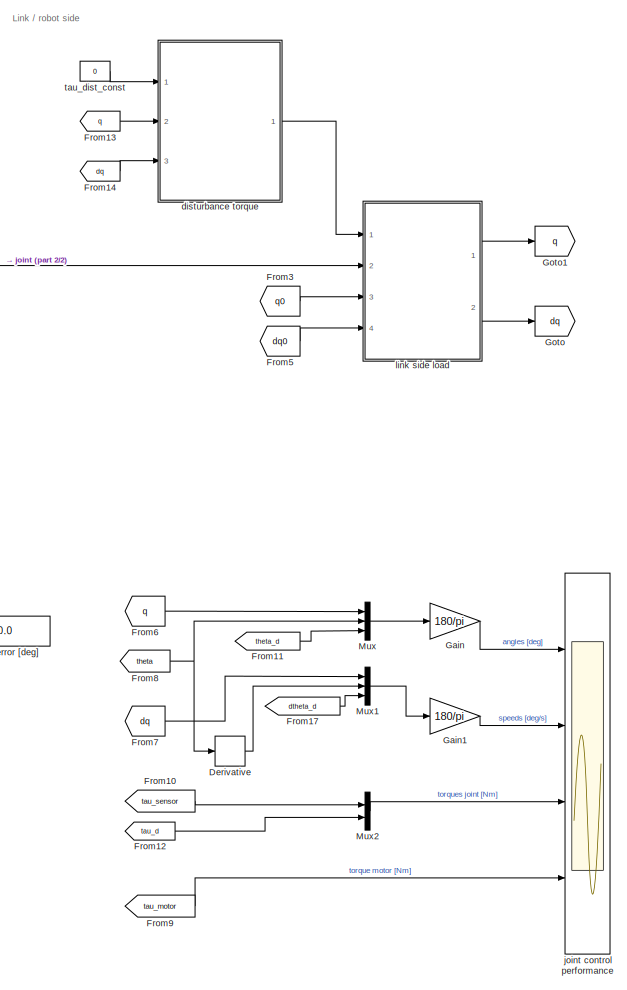
[diagram: root canvas - part 1/2, right side, full height]
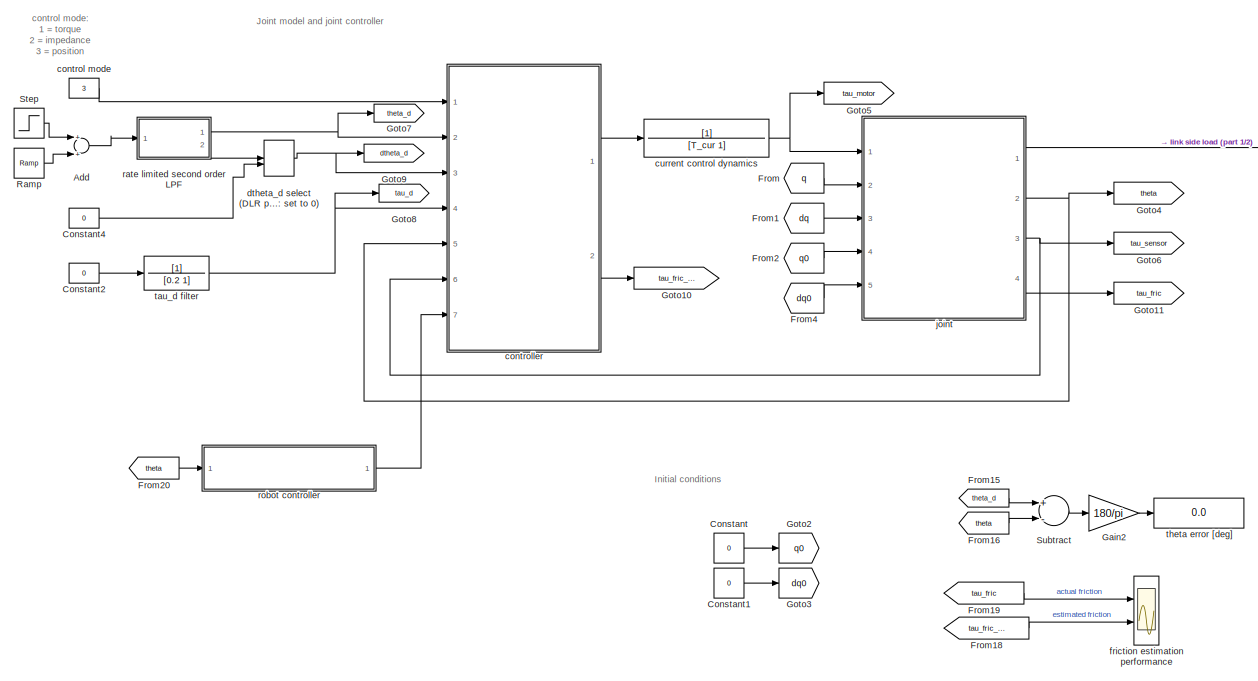
[diagram: root canvas - part 2/2, central region]
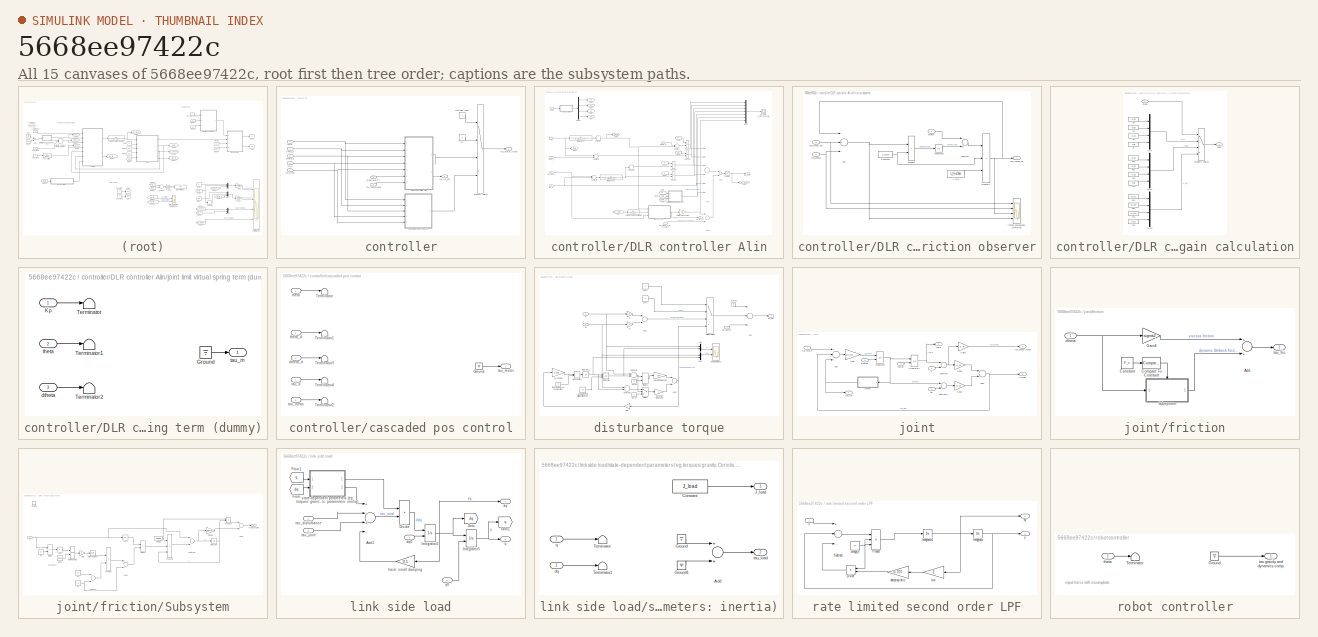
[diagram: thumbnail index - all 15 canvases of the model, root first then tree order]
MODEL slx_5668ee97422c
KIND model
CONFIG AbsTol = auto
CONFIG EnableMultiTasking = off
CONFIG FixedStep = auto
CONFIG MaxStep = 0.001
CONFIG MinStep = auto
CONFIG RelTol = 1e-3
CONFIG SampleTimeConstraint = Unconstrained
CONFIG Solver = VariableStepAuto
CONFIG SolverName = VariableStepAuto
CONFIG StartTime = 0.0
CONFIG StopTime = 2
BLOCK [Sum] Add
  InputSameDT = off
  OutDataTypeStr = Inherit: Inherit via internal rule
  Ports = [2, 1]
  SaturateOnIntegerOverflow = off
BLOCK [Constant] Constant
  Value = 0
BLOCK [Constant] Constant1
  Value = 0
BLOCK [Constant] Constant2
  Value = 0
BLOCK [Constant] Constant4
  Value = 0
BLOCK [Derivative] Derivative
BLOCK [From] From
  GotoTag = q
BLOCK [From] From1
  GotoTag = dq
BLOCK [From] From10
  GotoTag = tau_sensor
BLOCK [From] From11
  GotoTag = theta_d
BLOCK [From] From12
  GotoTag = tau_d
BLOCK [From] From13
  GotoTag = q
BLOCK [From] From14
  GotoTag = dq
BLOCK [From] From15
  GotoTag = theta_d
BLOCK [From] From16
  GotoTag = theta
BLOCK [From] From17
  GotoTag = dtheta_d
BLOCK [From] From18
  GotoTag = tau_fric_est
BLOCK [From] From19
  GotoTag = tau_fric
BLOCK [From] From2
  GotoTag = q0
BLOCK [From] From20
  GotoTag = theta
BLOCK [From] From3
  GotoTag = q0
BLOCK [From] From4
  GotoTag = dq0
BLOCK [From] From5
  GotoTag = dq0
BLOCK [From] From6
  GotoTag = q
BLOCK [From] From7
  GotoTag = dq
BLOCK [From] From8
  GotoTag = theta
BLOCK [From] From9
  GotoTag = tau_motor
BLOCK [Gain] Gain
  Gain = 180/pi
  OutDataTypeStr = Inherit: Inherit via internal rule
  ParamDataTypeStr = Inherit: Inherit via internal rule
  SaturateOnIntegerOverflow = off
BLOCK [Gain] Gain1
  Gain = 180/pi
  OutDataTypeStr = Inherit: Inherit via internal rule
  ParamDataTypeStr = Inherit: Inherit via internal rule
  SaturateOnIntegerOverflow = off
BLOCK [Gain] Gain2
  Gain = 180/pi
  OutDataTypeStr = Inherit: Inherit via internal rule
  ParamDataTypeStr = Inherit: Inherit via internal rule
  SaturateOnIntegerOverflow = off
BLOCK [Goto] Goto
  GotoTag = dq
BLOCK [Goto] Goto1
  GotoTag = q
BLOCK [Goto] Goto10
  GotoTag = tau_fric_est
BLOCK [Goto] Goto11
  GotoTag = tau_fric
BLOCK [Goto] Goto2
  GotoTag = q0
BLOCK [Goto] Goto3
  GotoTag = dq0
BLOCK [Goto] Goto4
  GotoTag = theta
BLOCK [Goto] Goto5
  GotoTag = tau_motor
BLOCK [Goto] Goto6
  GotoTag = tau_sensor
BLOCK [Goto] Goto7
  GotoTag = theta_d
BLOCK [Goto] Goto8
  GotoTag = tau_d
BLOCK [Goto] Goto9
  GotoTag = dtheta_d
BLOCK [Mux] Mux
  DisplayOption = bar
  Inputs = 3
  Ports = [3, 1]
BLOCK [Mux] Mux1
  DisplayOption = bar
  Inputs = 3
  Ports = [3, 1]
BLOCK [Mux] Mux2
  DisplayOption = bar
  Inputs = 2
  Ports = [2, 1]
BLOCK [Reference] Ramp  REF=simulink/Sources/Ramp
  Ports = [0, 1]
  SourceBlock = simulink/Sources/Ramp
  SourceProductBaseCode = SL
  SourceProductName = Simulink
  SourceType = Ramp
BLOCK [Step] Step
  After = 0.1
  SampleTime = 0
  Time = 0.1
BLOCK [Sum] Subtract
  InputSameDT = off
  Inputs = +-
  OutDataTypeStr = Inherit: Inherit via internal rule
  Ports = [2, 1]
  SaturateOnIntegerOverflow = off
BLOCK [Constant] control mode
  Value = 3
BLOCK [SubSystem] controller
  Ports = [7, 2]
  RequestExecContextInheritance = off
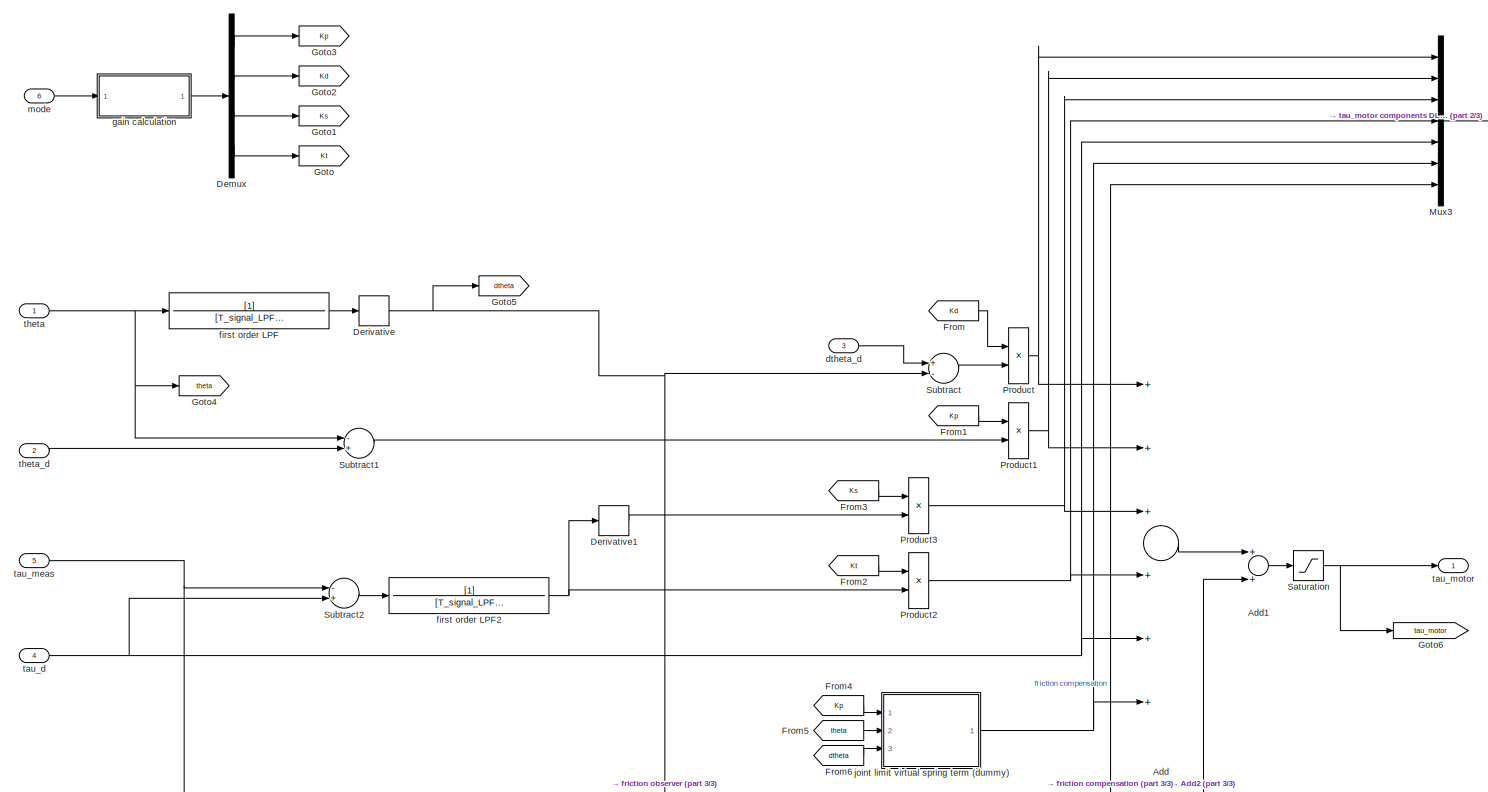
[diagram: controller/DLR controller Alin - part 1/3, most of the canvas]
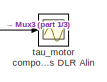
[diagram: controller/DLR controller Alin - part 2/3, top right region]
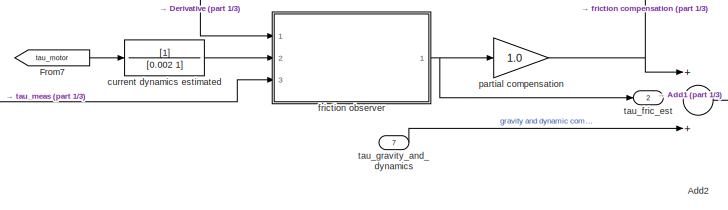
[diagram: controller/DLR controller Alin - part 3/3, bottom center region]
BLOCK [SubSystem] controller/DLR controller Alin
  Ports = [7, 2]
  RequestExecContextInheritance = off
BLOCK [Sum] controller/DLR controller Alin/Add
  InputSameDT = off
  Inputs = ++++++
  OutDataTypeStr = Inherit: Inherit via internal rule
  Ports = [6, 1]
  SaturateOnIntegerOverflow = off
BLOCK [Sum] controller/DLR controller Alin/Add1
  InputSameDT = off
  OutDataTypeStr = Inherit: Inherit via internal rule
  Ports = [2, 1]
  SaturateOnIntegerOverflow = off
BLOCK [Sum] controller/DLR controller Alin/Add2
  InputSameDT = off
  OutDataTypeStr = Inherit: Inherit via internal rule
  Ports = [2, 1]
  SaturateOnIntegerOverflow = off
BLOCK [Demux] controller/DLR controller Alin/Demux
  DisplayOption = bar
  Ports = [1, 4]
BLOCK [Derivative] controller/DLR controller Alin/Derivative
BLOCK [Derivative] controller/DLR controller Alin/Derivative1
BLOCK [From] controller/DLR controller Alin/From
  GotoTag = Kd
BLOCK [From] controller/DLR controller Alin/From1
  GotoTag = Kp
BLOCK [From] controller/DLR controller Alin/From2
  GotoTag = Kt
BLOCK [From] controller/DLR controller Alin/From3
  GotoTag = Ks
BLOCK [From] controller/DLR controller Alin/From4
  GotoTag = Kp
BLOCK [From] controller/DLR controller Alin/From5
  GotoTag = theta
BLOCK [From] controller/DLR controller Alin/From6
  GotoTag = dtheta
BLOCK [From] controller/DLR controller Alin/From7
  GotoTag = tau_motor
BLOCK [Goto] controller/DLR controller Alin/Goto
  GotoTag = Kt
BLOCK [Goto] controller/DLR controller Alin/Goto1
  GotoTag = Ks
BLOCK [Goto] controller/DLR controller Alin/Goto2
  GotoTag = Kd
BLOCK [Goto] controller/DLR controller Alin/Goto3
  GotoTag = Kp
BLOCK [Goto] controller/DLR controller Alin/Goto4
  GotoTag = theta
BLOCK [Goto] controller/DLR controller Alin/Goto5
  GotoTag = dtheta
BLOCK [Goto] controller/DLR controller Alin/Goto6
  GotoTag = tau_motor
BLOCK [Mux] controller/DLR controller Alin/Mux3
  DisplayOption = bar
  Inputs = 7
  Ports = [7, 1]
BLOCK [Product] controller/DLR controller Alin/Product
  InputSameDT = off
  OutDataTypeStr = Inherit: Inherit via internal rule
  Ports = [2, 1]
  RndMeth = Floor
  SaturateOnIntegerOverflow = off
BLOCK [Product] controller/DLR controller Alin/Product1
  InputSameDT = off
  OutDataTypeStr = Inherit: Inherit via internal rule
  Ports = [2, 1]
  RndMeth = Floor
  SaturateOnIntegerOverflow = off
BLOCK [Product] controller/DLR controller Alin/Product2
  InputSameDT = off
  OutDataTypeStr = Inherit: Inherit via internal rule
  Ports = [2, 1]
  RndMeth = Floor
  SaturateOnIntegerOverflow = off
BLOCK [Product] controller/DLR controller Alin/Product3
  InputSameDT = off
  OutDataTypeStr = Inherit: Inherit via internal rule
  Ports = [2, 1]
  RndMeth = Floor
  SaturateOnIntegerOverflow = off
BLOCK [Saturate] controller/DLR controller Alin/Saturation
  InputPortMap = u0
  LinearizeAsGain = off
  LowerLimit = -tau_max_ctrl
  Ports = [1, 1]
  UpperLimit = tau_max_ctrl
  ZeroCross = off
BLOCK [Sum] controller/DLR controller Alin/Subtract
  InputSameDT = off
  Inputs = +-
  OutDataTypeStr = Inherit: Inherit via internal rule
  Ports = [2, 1]
  SaturateOnIntegerOverflow = off
BLOCK [Sum] controller/DLR controller Alin/Subtract1
  InputSameDT = off
  Inputs = -+
  OutDataTypeStr = Inherit: Inherit via internal rule
  Ports = [2, 1]
  SaturateOnIntegerOverflow = off
BLOCK [Sum] controller/DLR controller Alin/Subtract2
  InputSameDT = off
  Inputs = -+
  OutDataTypeStr = Inherit: Inherit via internal rule
  Ports = [2, 1]
  SaturateOnIntegerOverflow = off
BLOCK [TransferFcn] controller/DLR controller Alin/current dynamics estimated
  Denominator = [0.002 1]
BLOCK [Inport] controller/DLR controller Alin/dtheta_d
  IconDisplay = Port number
  Port = 3
BLOCK [TransferFcn] controller/DLR controller Alin/first order LPF
  Denominator = [T_signal_LPF 1]
BLOCK [TransferFcn] controller/DLR controller Alin/first order LPF2
  Denominator = [T_signal_LPF 1]
BLOCK [SubSystem] controller/DLR controller Alin/friction observer
  Ports = [3, 1]
  RequestExecContextInheritance = off
BLOCK [Sum] controller/DLR controller Alin/friction observer/Add
  InputSameDT = off
  Inputs = -+-
  OutDataTypeStr = Inherit: Inherit via internal rule
  Ports = [3, 1]
  SaturateOnIntegerOverflow = off
BLOCK [Constant] controller/DLR controller Alin/friction observer/Constant
  Value = J_joint
BLOCK [Integrator] controller/DLR controller Alin/friction observer/Integrator
  Ports = [1, 1]
BLOCK [Constant] controller/DLR controller Alin/friction observer/L (1//s)
  Value = L_fricObs
BLOCK [Product] controller/DLR controller Alin/friction observer/Product
  InputSameDT = off
  Inputs = */
  OutDataTypeStr = Inherit: Inherit via internal rule
  Ports = [2, 1]
  RndMeth = Floor
  SaturateOnIntegerOverflow = off
BLOCK [Product] controller/DLR controller Alin/friction observer/Product1
  InputSameDT = off
  Inputs = 3
  OutDataTypeStr = Inherit: Inherit via internal rule
  Ports = [3, 1]
  RndMeth = Floor
  SaturateOnIntegerOverflow = off
BLOCK [Sum] controller/DLR controller Alin/friction observer/Subtract
  InputSameDT = off
  Inputs = -+
  OutDataTypeStr = Inherit: Inherit via internal rule
  Ports = [2, 1]
  SaturateOnIntegerOverflow = off
BLOCK [Inport] controller/DLR controller Alin/friction observer/dtheta
  IconDisplay = Port number
BLOCK [Scope] controller/DLR controller Alin/friction observer/friction compensation internal
  Floating = off
  NumInputPorts = 4
  Ports = [4]
  ScopeSpecificationString = Simulink.scopes.TimeScopeBlockCfg('CurrentConfiguration', extmgr.ConfigurationSet(extmgr.Configuration('Core','General UI',true),extmgr.Configuration('Core','Source UI',true),extmgr.Configuration('Sources','WiredSimulink',true,'DataLoggingVariableName','ScopeData3'),extmgr.Configuration('Visuals','Time Domain',true,'SerializedDisplays',{struct('MinYLimReal','-74.35229','MaxYLimReal','141.46204','Y...<+1460ch>
BLOCK [Outport] controller/DLR controller Alin/friction observer/tau_friction_est
  IconDisplay = Port number
BLOCK [Inport] controller/DLR controller Alin/friction observer/tau_motor_act
  IconDisplay = Port number
  Port = 2
BLOCK [Inport] controller/DLR controller Alin/friction observer/tau_sensor
  IconDisplay = Port number
  Port = 3
BLOCK [SubSystem] controller/DLR controller Alin/gain calculation
  Ports = [1, 1]
  RequestExecContextInheritance = off
BLOCK [Constant] controller/DLR controller Alin/gain calculation/Kd
  Value = Kd_trq
BLOCK [Constant] controller/DLR controller Alin/gain calculation/Kd1
  Value = Kd_trq
BLOCK [Constant] controller/DLR controller Alin/gain calculation/Kd2
  Value = Kd_pos
BLOCK [Constant] controller/DLR controller Alin/gain calculation/Kp
  Value = Kp_trq
BLOCK [Constant] controller/DLR controller Alin/gain calculation/Kp1
  Value = Kp_trq
BLOCK [Constant] controller/DLR controller Alin/gain calculation/Kp2
  Value = Kp_pos
BLOCK [Constant] controller/DLR controller Alin/gain calculation/Ks
  Value = Ks_trq
BLOCK [Constant] controller/DLR controller Alin/gain calculation/Ks1
  Value = Ks_trq
BLOCK [Constant] controller/DLR controller Alin/gain calculation/Ks2
  Value = Ks_pos
BLOCK [Constant] controller/DLR controller Alin/gain calculation/Kt
  Value = Kt_trq
BLOCK [Constant] controller/DLR controller Alin/gain calculation/Kt1
  Value = Kt_trq
BLOCK [Constant] controller/DLR controller Alin/gain calculation/Kt2
  Value = Kt_pos
BLOCK [MultiPortSwitch] controller/DLR controller Alin/gain calculation/Multiport Switch1
  InputSameDT = off
  Ports = [4, 1]
  SaturateOnIntegerOverflow = off
BLOCK [Mux] controller/DLR controller Alin/gain calculation/Mux
  DisplayOption = bar
  Ports = [4, 1]
BLOCK [Mux] controller/DLR controller Alin/gain calculation/Mux1
  DisplayOption = bar
  Ports = [4, 1]
BLOCK [Mux] controller/DLR controller Alin/gain calculation/Mux2
  DisplayOption = bar
  Ports = [4, 1]
BLOCK [Outport] controller/DLR controller Alin/gain calculation/gains
  IconDisplay = Port number
BLOCK [Inport] controller/DLR controller Alin/gain calculation/mode
  IconDisplay = Port number
BLOCK [SubSystem] controller/DLR controller Alin/joint limit virtual spring term (dummy)
  Ports = [3, 1]
  RequestExecContextInheritance = off
BLOCK [Ground] controller/DLR controller Alin/joint limit virtual spring term (dummy)/Ground
BLOCK [Inport] controller/DLR controller Alin/joint limit virtual spring term (dummy)/Kp
  IconDisplay = Port number
BLOCK [Terminator] controller/DLR controller Alin/joint limit virtual spring term (dummy)/Terminator
BLOCK [Terminator] controller/DLR controller Alin/joint limit virtual spring term (dummy)/Terminator1
BLOCK [Terminator] controller/DLR controller Alin/joint limit virtual spring term (dummy)/Terminator2
BLOCK [Inport] controller/DLR controller Alin/joint limit virtual spring term (dummy)/dtheta
  IconDisplay = Port number
  Port = 3
BLOCK [Outport] controller/DLR controller Alin/joint limit virtual spring term (dummy)/tau_m
  IconDisplay = Port number
BLOCK [Inport] controller/DLR controller Alin/joint limit virtual spring term (dummy)/theta
  IconDisplay = Port number
  Port = 2
BLOCK [Inport] controller/DLR controller Alin/mode
  IconDisplay = Port number
  Port = 6
BLOCK [Gain] controller/DLR controller Alin/partial compensation
  Gain = 1.0
  OutDataTypeStr = Inherit: Inherit via internal rule
  ParamDataTypeStr = Inherit: Inherit via internal rule
  SaturateOnIntegerOverflow = off
BLOCK [Inport] controller/DLR controller Alin/tau_d
  IconDisplay = Port number
  Port = 4
BLOCK [Outport] controller/DLR controller Alin/tau_fric_est
  IconDisplay = Port number
  Port = 2
BLOCK [Inport] controller/DLR controller Alin/tau_gravity_and_dynamics
  IconDisplay = Port number
  Port = 7
BLOCK [Inport] controller/DLR controller Alin/tau_meas
  IconDisplay = Port number
  Port = 5
BLOCK [Outport] controller/DLR controller Alin/tau_motor
  IconDisplay = Port number
BLOCK [Scope] controller/DLR controller Alin/tau_motor components DLR Alin
  Floating = off
  NumInputPorts = 1
  Ports = [1]
  ScopeSpecificationString = Simulink.scopes.TimeScopeBlockCfg('CurrentConfiguration', extmgr.ConfigurationSet(extmgr.Configuration('Core','General UI',true),extmgr.Configuration('Core','Source UI',true),extmgr.Configuration('Sources','WiredSimulink',true,'DataLoggingVariableName','ScopeData1'),extmgr.Configuration('Visuals','Time Domain',true,'SerializedDisplays',{struct('MinYLimReal','-417.65258','MaxYLimReal','370.60839','...<+1656ch>
BLOCK [Inport] controller/DLR controller Alin/theta
  IconDisplay = Port number
BLOCK [Inport] controller/DLR controller Alin/theta_d
  IconDisplay = Port number
  Port = 2
BLOCK [MultiPortSwitch] controller/Multiport Switch
  DataPortOrder = Zero-based contiguous
  InputSameDT = off
  Ports = [4, 1]
  SaturateOnIntegerOverflow = off
  zeroidx = on
BLOCK [SubSystem] controller/cascaded pos control
  Ports = [5, 1]
  RequestExecContextInheritance = off
BLOCK [Ground] controller/cascaded pos control/Ground
BLOCK [Terminator] controller/cascaded pos control/Terminator
BLOCK [Terminator] controller/cascaded pos control/Terminator1
BLOCK [Terminator] controller/cascaded pos control/Terminator2
BLOCK [Terminator] controller/cascaded pos control/Terminator3
BLOCK [Terminator] controller/cascaded pos control/Terminator4
BLOCK [Inport] controller/cascaded pos control/dtheta_d
  IconDisplay = Port number
  Port = 3
BLOCK [Inport] controller/cascaded pos control/tau_d
  IconDisplay = Port number
  Port = 4
BLOCK [Inport] controller/cascaded pos control/tau_meas
  IconDisplay = Port number
  Port = 5
BLOCK [Outport] controller/cascaded pos control/tau_motor
  IconDisplay = Port number
BLOCK [Inport] controller/cascaded pos control/theta
  IconDisplay = Port number
BLOCK [Inport] controller/cascaded pos control/theta_d
  IconDisplay = Port number
  Port = 2
BLOCK [Constant] controller/controller select
BLOCK [Inport] controller/dtheta_d
  IconDisplay = Port number
  Port = 3
BLOCK [Inport] controller/mode DLR ctrl
  IconDisplay = Port number
BLOCK [Constant] controller/off
  Value = 0
BLOCK [Inport] controller/tau_d
  IconDisplay = Port number
  Port = 4
BLOCK [Inport] controller/tau_feedforward
  IconDisplay = Port number
  Port = 7
BLOCK [Outport] controller/tau_fric_est
  IconDisplay = Port number
  Port = 2
BLOCK [Inport] controller/tau_meas
  IconDisplay = Port number
  Port = 6
BLOCK [Outport] controller/tau_motor_target
  IconDisplay = Port number
BLOCK [Inport] controller/theta
  IconDisplay = Port number
  Port = 5
BLOCK [Inport] controller/theta_d
  IconDisplay = Port number
  Port = 2
BLOCK [TransferFcn] current control dynamics
  Denominator = [T_cur 1]
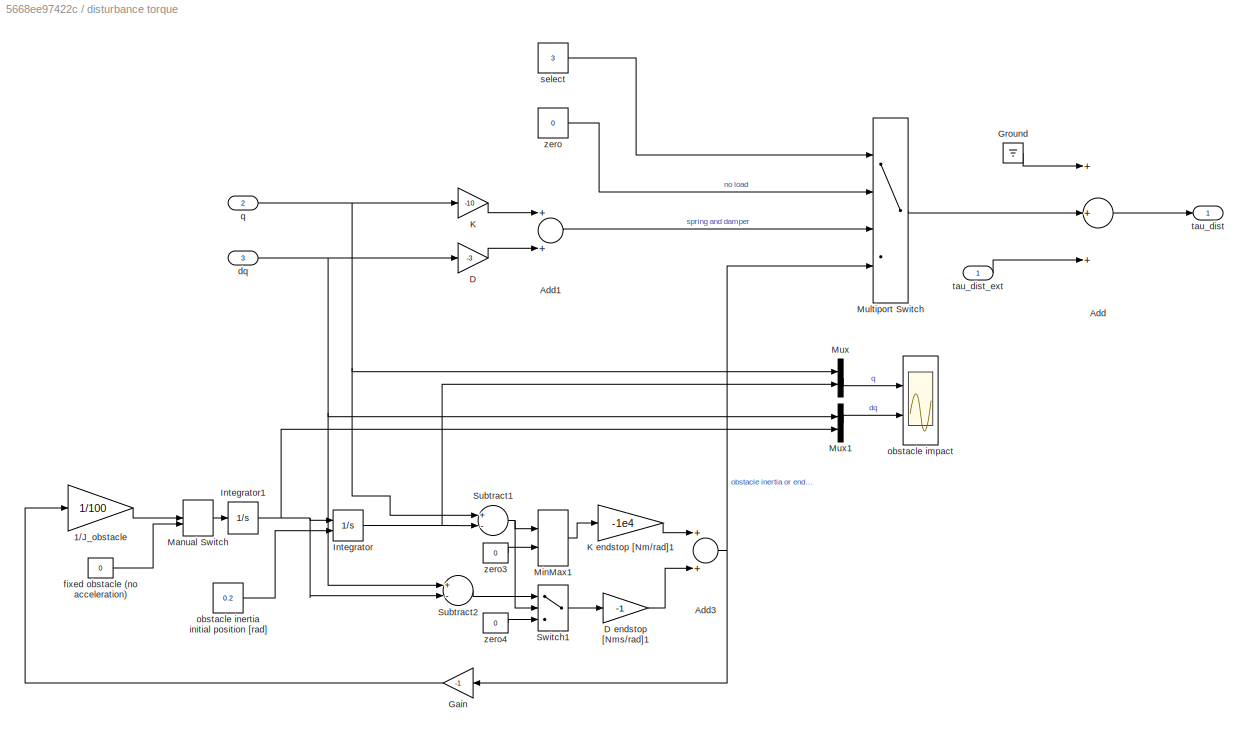
BLOCK [SubSystem] disturbance torque
  Ports = [3, 1]
  RequestExecContextInheritance = off
BLOCK [Gain] disturbance torque/1//J_obstacle
  Gain = 1/100
  OutDataTypeStr = Inherit: Inherit via internal rule
  ParamDataTypeStr = Inherit: Inherit via internal rule
  SaturateOnIntegerOverflow = off
BLOCK [Sum] disturbance torque/Add
  InputSameDT = off
  Inputs = +++
  OutDataTypeStr = Inherit: Inherit via internal rule
  Ports = [3, 1]
  SaturateOnIntegerOverflow = off
BLOCK [Sum] disturbance torque/Add1
  InputSameDT = off
  OutDataTypeStr = Inherit: Inherit via internal rule
  Ports = [2, 1]
  SaturateOnIntegerOverflow = off
BLOCK [Sum] disturbance torque/Add3
  InputSameDT = off
  OutDataTypeStr = Inherit: Inherit via internal rule
  Ports = [2, 1]
  SaturateOnIntegerOverflow = off
BLOCK [Gain] disturbance torque/D
  Gain = -3
  OutDataTypeStr = Inherit: Inherit via internal rule
  ParamDataTypeStr = Inherit: Inherit via internal rule
  SaturateOnIntegerOverflow = off
BLOCK [Gain] disturbance torque/D endstop [Nms//rad]1
  Gain = -1
  OutDataTypeStr = Inherit: Inherit via internal rule
  ParamDataTypeStr = Inherit: Inherit via internal rule
  SaturateOnIntegerOverflow = off
BLOCK [Gain] disturbance torque/Gain
  Gain = -1
  OutDataTypeStr = Inherit: Inherit via internal rule
  ParamDataTypeStr = Inherit: Inherit via internal rule
  SaturateOnIntegerOverflow = off
BLOCK [Ground] disturbance torque/Ground
BLOCK [Integrator] disturbance torque/Integrator
  InitialConditionSource = external
  Ports = [2, 1]
BLOCK [Integrator] disturbance torque/Integrator1
  Ports = [1, 1]
BLOCK [Gain] disturbance torque/K
  Gain = -10
  OutDataTypeStr = Inherit: Inherit via internal rule
  ParamDataTypeStr = Inherit: Inherit via internal rule
  SaturateOnIntegerOverflow = off
BLOCK [Gain] disturbance torque/K endstop [Nm//rad]1
  Gain = -1e4
  OutDataTypeStr = Inherit: Inherit via internal rule
  ParamDataTypeStr = Inherit: Inherit via internal rule
  SaturateOnIntegerOverflow = off
BLOCK [ManualSwitch] disturbance torque/Manual Switch
BLOCK [MinMax] disturbance torque/MinMax1
  Function = max
  InputSameDT = off
  Inputs = 2
  Ports = [2, 1]
  SaturateOnIntegerOverflow = off
BLOCK [MultiPortSwitch] disturbance torque/Multiport Switch
  InputSameDT = off
  Ports = [4, 1]
  SaturateOnIntegerOverflow = off
BLOCK [Mux] disturbance torque/Mux
  DisplayOption = bar
  Inputs = 2
  Ports = [2, 1]
BLOCK [Mux] disturbance torque/Mux1
  DisplayOption = bar
  Inputs = 2
  Ports = [2, 1]
BLOCK [Sum] disturbance torque/Subtract1
  InputSameDT = off
  Inputs = +-
  OutDataTypeStr = Inherit: Inherit via internal rule
  Ports = [2, 1]
  SaturateOnIntegerOverflow = off
BLOCK [Sum] disturbance torque/Subtract2
  InputSameDT = off
  Inputs = +-
  OutDataTypeStr = Inherit: Inherit via internal rule
  Ports = [2, 1]
  SaturateOnIntegerOverflow = off
BLOCK [Switch] disturbance torque/Switch1
  Criteria = u2 > Threshold
  InputSameDT = off
  SaturateOnIntegerOverflow = off
BLOCK [Inport] disturbance torque/dq
  IconDisplay = Port number
  Port = 3
BLOCK [Constant] disturbance torque/fixed obstacle (no acceleration)
  Value = 0
BLOCK [Scope] disturbance torque/obstacle impact
  Floating = off
  NumInputPorts = 2
  Ports = [2]
  ScopeSpecificationString = Simulink.scopes.TimeScopeBlockCfg('CurrentConfiguration', extmgr.ConfigurationSet(extmgr.Configuration('Core','General UI',true),extmgr.Configuration('Core','Source UI',true),extmgr.Configuration('Sources','WiredSimulink',true,'DataLoggingVariableName','ScopeData4'),extmgr.Configuration('Visuals','Time Domain',true,'SerializedDisplays',{struct('MinYLimReal','-0.05113','MaxYLimReal','0.46017','YLab...<+2007ch>
BLOCK [Constant] disturbance torque/obstacle inertia initial position [rad]
  Value = 0.2
BLOCK [Inport] disturbance torque/q
  IconDisplay = Port number
  Port = 2
BLOCK [Constant] disturbance torque/select
  Value = 3
BLOCK [Outport] disturbance torque/tau_dist
  IconDisplay = Port number
BLOCK [Inport] disturbance torque/tau_dist_ext
  IconDisplay = Port number
BLOCK [Constant] disturbance torque/zero
  Value = 0
BLOCK [Constant] disturbance torque/zero3
  Value = 0
BLOCK [Constant] disturbance torque/zero4
  Value = 0
BLOCK [ManualSwitch] dtheta_d select (DLR papers and sim: set to 0)
BLOCK [Scope] friction estimation performance
  Floating = off
  NumInputPorts = 2
  Ports = [2]
  ScopeSpecificationString = Simulink.scopes.TimeScopeBlockCfg('CurrentConfiguration', extmgr.ConfigurationSet(extmgr.Configuration('Core','General UI',true),extmgr.Configuration('Core','Source UI',true),extmgr.Configuration('Sources','WiredSimulink',true,'DataLoggingVariableName','ScopeData2'),extmgr.Configuration('Visuals','Time Domain',true,'SerializedDisplays',{struct('MinYLimReal','-12.85663','MaxYLimReal','115.70966','Y...<+1432ch>
BLOCK [SubSystem] joint
  Ports = [5, 4]
  RequestExecContextInheritance = off
BLOCK [Scope] joint control performance
  Floating = off
  NumInputPorts = 4
  Ports = [4]
  ScopeSpecificationString = Simulink.scopes.TimeScopeBlockCfg('CurrentConfiguration', extmgr.ConfigurationSet(extmgr.Configuration('Core','General UI',true),extmgr.Configuration('Core','Source UI',true),extmgr.Configuration('Sources','WiredSimulink',true),extmgr.Configuration('Visuals','Time Domain',true,'SerializedDisplays',{struct('MinYLimReal','-2.76352','MaxYLimReal','24.87167','YLabelReal','','MinYLimMag','0.00000','Max...<+3587ch>
BLOCK [Sum] joint/Add
  InputSameDT = off
  Inputs = +--
  OutDataTypeStr = Inherit: Inherit via internal rule
  Ports = [3, 1]
  SaturateOnIntegerOverflow = off
BLOCK [Sum] joint/Add2
  InputSameDT = off
  OutDataTypeStr = Inherit: Inherit via internal rule
  Ports = [2, 1]
  SaturateOnIntegerOverflow = off
BLOCK [Gain] joint/Gain
  Gain = 1/J_joint
  OutDataTypeStr = Inherit: Inherit via internal rule
  ParamDataTypeStr = Inherit: Inherit via internal rule
  SaturateOnIntegerOverflow = off
BLOCK [Gain] joint/Gain2
  Gain = K_el
  OutDataTypeStr = Inherit: Inherit via internal rule
  ParamDataTypeStr = Inherit: Inherit via internal rule
  SaturateOnIntegerOverflow = off
BLOCK [Gain] joint/Gain3
  Gain = D_el
  OutDataTypeStr = Inherit: Inherit via internal rule
  ParamDataTypeStr = Inherit: Inherit via internal rule
  SaturateOnIntegerOverflow = off
BLOCK [Gain] joint/Gain4
  Gain = K_el
  OutDataTypeStr = Inherit: Inherit via internal rule
  ParamDataTypeStr = Inherit: Inherit via internal rule
  SaturateOnIntegerOverflow = off
BLOCK [Integrator] joint/Integrator
  InitialConditionSource = external
  Ports = [2, 1]
BLOCK [Integrator] joint/Integrator1
  InitialConditionSource = external
  Ports = [2, 1]
BLOCK [Sum] joint/Subtract
  InputSameDT = off
  Inputs = +-
  OutDataTypeStr = Inherit: Inherit via internal rule
  Ports = [2, 1]
  SaturateOnIntegerOverflow = off
BLOCK [Sum] joint/Subtract1
  InputSameDT = off
  Inputs = +-
  OutDataTypeStr = Inherit: Inherit via internal rule
  Ports = [2, 1]
  SaturateOnIntegerOverflow = off
BLOCK [Inport] joint/dq
  IconDisplay = Port number
  Port = 3
BLOCK [Inport] joint/dtheta0
  IconDisplay = Port number
  Port = 5
BLOCK [SubSystem] joint/friction
  Ports = [1, 1]
  RequestExecContextInheritance = off
BLOCK [Sum] joint/friction/Add
  InputSameDT = off
  OutDataTypeStr = Inherit: Inherit via internal rule
  Ports = [2, 1]
  SaturateOnIntegerOverflow = off
BLOCK [Reference] joint/friction/Compare To Constant  REF=simulink/Logic and Bit
Operations/Compare
To Constant
  Ports = [1, 1]
  SourceBlock = simulink/Logic and Bit\nOperations/Compare\nTo Constant
  SourceProductBaseCode = SL
  SourceProductName = Simulink
  SourceType = Compare To Constant
BLOCK [Constant] joint/friction/Constant
  Value = F_c
BLOCK [Gain] joint/friction/Gain4
  Gain = sigma2
  OutDataTypeStr = Inherit: Inherit via internal rule
  ParamDataTypeStr = Inherit: Inherit via internal rule
  SaturateOnIntegerOverflow = off
BLOCK [SubSystem] joint/friction/Subsystem
  Ports = [1, 1, 1]
  RequestExecContextInheritance = off
BLOCK [Abs] joint/friction/Subsystem/Abs
  SaturateOnIntegerOverflow = off
BLOCK [Abs] joint/friction/Subsystem/Abs1
  SaturateOnIntegerOverflow = off
BLOCK [Sum] joint/friction/Subsystem/Add1
  InputSameDT = off
  OutDataTypeStr = Inherit: Inherit via internal rule
  Ports = [2, 1]
  SaturateOnIntegerOverflow = off
BLOCK [Sum] joint/friction/Subsystem/Add2
  InputSameDT = off
  OutDataTypeStr = Inherit: Inherit via internal rule
  Ports = [2, 1]
  SaturateOnIntegerOverflow = off
BLOCK [Product] joint/friction/Subsystem/Divide
  InputSameDT = off
  Inputs = */
  OutDataTypeStr = Inherit: Inherit via internal rule
  Ports = [2, 1]
  RndMeth = Floor
  SaturateOnIntegerOverflow = off
BLOCK [Product] joint/friction/Subsystem/Divide1
  InputSameDT = off
  Inputs = */
  OutDataTypeStr = Inherit: Inherit via internal rule
  Ports = [2, 1]
  RndMeth = Floor
  SaturateOnIntegerOverflow = off
BLOCK [EnablePort] joint/friction/Subsystem/Enable
  Ports = []
  StatesWhenEnabling = reset
BLOCK [Outport] joint/friction/Subsystem/F_fric dynamic
  IconDisplay = Port number
  InitialOutput = 0
  OutputWhenDisabled = reset
BLOCK [Constant] joint/friction/Subsystem/Fc
  Value = F_c
BLOCK [Constant] joint/friction/Subsystem/Fs
  Value = F_s
BLOCK [Gain] joint/friction/Subsystem/Gain
  Gain = -1
  OutDataTypeStr = Inherit: Inherit via internal rule
  ParamDataTypeStr = Inherit: Inherit via internal rule
  SaturateOnIntegerOverflow = off
BLOCK [Integrator] joint/friction/Subsystem/Integrator
  Ports = [1, 1]
BLOCK [Math] joint/friction/Subsystem/Math Function
  Operator = pow
  Ports = [2, 1]
BLOCK [Math] joint/friction/Subsystem/Math Function1
  Ports = [1, 1]
BLOCK [Product] joint/friction/Subsystem/Product
  InputSameDT = off
  OutDataTypeStr = Inherit: Inherit via internal rule
  Ports = [2, 1]
  RndMeth = Floor
  SaturateOnIntegerOverflow = off
BLOCK [Product] joint/friction/Subsystem/Product1
  InputSameDT = off
  Inputs = 3
  OutDataTypeStr = Inherit: Inherit via internal rule
  Ports = [3, 1]
  RndMeth = Floor
  SaturateOnIntegerOverflow = off
BLOCK [Product] joint/friction/Subsystem/Product2
  InputSameDT = off
  OutDataTypeStr = Inherit: Inherit via internal rule
  Ports = [2, 1]
  RndMeth = Floor
  SaturateOnIntegerOverflow = off
BLOCK [Sum] joint/friction/Subsystem/Subtract
  InputSameDT = off
  Inputs = +-
  OutDataTypeStr = Inherit: Inherit via internal rule
  Ports = [2, 1]
  SaturateOnIntegerOverflow = off
BLOCK [Sum] joint/friction/Subsystem/Subtract1
  InputSameDT = off
  Inputs = +-
  OutDataTypeStr = Inherit: Inherit via internal rule
  Ports = [2, 1]
  SaturateOnIntegerOverflow = off
BLOCK [Constant] joint/friction/Subsystem/alpha
  Value = alpha
BLOCK [Constant] joint/friction/Subsystem/sigma0
  Value = sigma0
BLOCK [Gain] joint/friction/Subsystem/sigma1
  Gain = sigma1
  OutDataTypeStr = Inherit: Inherit via internal rule
  ParamDataTypeStr = Inherit: Inherit via internal rule
  SaturateOnIntegerOverflow = off
BLOCK [Inport] joint/friction/Subsystem/v
  IconDisplay = Port number
BLOCK [Constant] joint/friction/Subsystem/vs
  Value = vs
BLOCK [Inport] joint/friction/dtheta
  IconDisplay = Port number
BLOCK [Outport] joint/friction/tau_fric
  IconDisplay = Port number
BLOCK [Inport] joint/q
  IconDisplay = Port number
  Port = 2
BLOCK [Inport] joint/tau motor
  IconDisplay = Port number
BLOCK [Outport] joint/tau_fric
  IconDisplay = Port number
  Port = 4
BLOCK [Outport] joint/tau_joint
  IconDisplay = Port number
BLOCK [Outport] joint/tau_sensor_meas
  IconDisplay = Port number
  Port = 3
BLOCK [Outport] joint/theta
  IconDisplay = Port number
  Port = 2
BLOCK [Inport] joint/theta0
  IconDisplay = Port number
  Port = 4
BLOCK [SubSystem] link side load
  Ports = [4, 2]
  RequestExecContextInheritance = off
BLOCK [Sum] link side load/Add1
  InputSameDT = off
  Inputs = +++-
  OutDataTypeStr = Inherit: Inherit via internal rule
  Ports = [4, 1]
  SaturateOnIntegerOverflow = off
BLOCK [Product] link side load/Divide
  InputSameDT = off
  Inputs = /*
  OutDataTypeStr = Inherit: Inherit via internal rule
  Ports = [2, 1]
  RndMeth = Floor
  SaturateOnIntegerOverflow = off
BLOCK [From] link side load/From
  GotoTag = dq
BLOCK [From] link side load/From1
  GotoTag = q
BLOCK [Goto] link side load/Goto
  GotoTag = dq
BLOCK [Goto] link side load/Goto1
  GotoTag = q
BLOCK [Integrator] link side load/Integrator2
  InitialConditionSource = external
  Ports = [2, 1]
BLOCK [Integrator] link side load/Integrator3
  InitialConditionSource = external
  Ports = [2, 1]
BLOCK [Outport] link side load/dq
  IconDisplay = Port number
  Port = 2
BLOCK [Inport] link side load/dq0
  IconDisplay = Port number
  Port = 4
BLOCK [Gain] link side load/hack: small damping
  Gain = 0.1
  OutDataTypeStr = Inherit: Inherit via internal rule
  ParamDataTypeStr = Inherit: Inherit via internal rule
  SaturateOnIntegerOverflow = off
BLOCK [Outport] link side load/q
  IconDisplay = Port number
BLOCK [Inport] link side load/q0
  IconDisplay = Port number
  Port = 3
BLOCK [SubSystem] link side load/state-dependent parameters (eg torques: gravity, Coriolis, etc. parameters: inertia)
  Ports = [2, 2]
  RequestExecContextInheritance = off
BLOCK [Sum] link side load/state-dependent parameters (eg torques: gravity, Coriolis, etc. parameters: inertia)/Add
  InputSameDT = off
  OutDataTypeStr = Inherit: Inherit via internal rule
  Ports = [2, 1]
  SaturateOnIntegerOverflow = off
BLOCK [Constant] link side load/state-dependent parameters (eg torques: gravity, Coriolis, etc. parameters: inertia)/Constant
  Value = J_load
BLOCK [Ground] link side load/state-dependent parameters (eg torques: gravity, Coriolis, etc. parameters: inertia)/Ground
BLOCK [Ground] link side load/state-dependent parameters (eg torques: gravity, Coriolis, etc. parameters: inertia)/Ground1
BLOCK [Outport] link side load/state-dependent parameters (eg torques: gravity, Coriolis, etc. parameters: inertia)/J_load
  IconDisplay = Port number
BLOCK [Terminator] link side load/state-dependent parameters (eg torques: gravity, Coriolis, etc. parameters: inertia)/Terminator
BLOCK [Terminator] link side load/state-dependent parameters (eg torques: gravity, Coriolis, etc. parameters: inertia)/Terminator1
BLOCK [Inport] link side load/state-dependent parameters (eg torques: gravity, Coriolis, etc. parameters: inertia)/dq
  IconDisplay = Port number
  Port = 2
BLOCK [Inport] link side load/state-dependent parameters (eg torques: gravity, Coriolis, etc. parameters: inertia)/q
  IconDisplay = Port number
BLOCK [Outport] link side load/state-dependent parameters (eg torques: gravity, Coriolis, etc. parameters: inertia)/tau_load
  IconDisplay = Port number
  Port = 2
BLOCK [Inport] link side load/tau_disturbance
  IconDisplay = Port number
BLOCK [Inport] link side load/tau_joint
  IconDisplay = Port number
  Port = 2
BLOCK [SubSystem] rate limited second order LPF
  Ports = [1, 2]
  RequestExecContextInheritance = off
BLOCK [Product] rate limited second order LPF/Divide
  InputSameDT = off
  Inputs = /*
  OutDataTypeStr = Inherit: Inherit via internal rule
  Ports = [2, 1]
  RndMeth = Floor
  SaturateOnIntegerOverflow = off
BLOCK [Integrator] rate limited second order LPF/Integrator
  Ports = [1, 1]
BLOCK [Integrator] rate limited second order LPF/Integrator1
  LimitOutput = on
  LowerSaturationLimit = -1
  Ports = [1, 1]
  UpperSaturationLimit = 1
BLOCK [Product] rate limited second order LPF/Product
  InputSameDT = off
  Inputs = 3
  OutDataTypeStr = Inherit: Inherit via internal rule
  Ports = [3, 1]
  RndMeth = Floor
  SaturateOnIntegerOverflow = off
BLOCK [Sum] rate limited second order LPF/Subtract
  InputSameDT = off
  Inputs = +--
  OutDataTypeStr = Inherit: Inherit via internal rule
  Ports = [3, 1]
  SaturateOnIntegerOverflow = off
BLOCK [Gain] rate limited second order LPF/damping ratio
  Gain = 0.707
  OutDataTypeStr = Inherit: Inherit via internal rule
  ParamDataTypeStr = Inherit: Inherit via internal rule
  SaturateOnIntegerOverflow = off
BLOCK [Outport] rate limited second order LPF/dy
  IconDisplay = Port number
  Port = 2
BLOCK [Constant] rate limited second order LPF/omega_n
  Value = 20
BLOCK [Gain] rate limited second order LPF/two
  Gain = 2
  OutDataTypeStr = Inherit: Inherit via internal rule
  ParamDataTypeStr = Inherit: Inherit via internal rule
  SaturateOnIntegerOverflow = off
BLOCK [Inport] rate limited second order LPF/u
  IconDisplay = Port number
BLOCK [Outport] rate limited second order LPF/y
  IconDisplay = Port number
BLOCK [SubSystem] robot controller
  Ports = [1, 1]
  RequestExecContextInheritance = off
BLOCK [Ground] robot controller/Ground
BLOCK [Terminator] robot controller/Terminator
BLOCK [Outport] robot controller/tau gravity and dynamics comp.
  IconDisplay = Port number
BLOCK [Inport] robot controller/theta
  IconDisplay = Port number
BLOCK [TransferFcn] tau_d filter
  Denominator = [0.2 1]
BLOCK [Constant] tau_dist_const
  Value = 0
BLOCK [Display] theta error [deg]
  Decimation = 1
  Ports = [1]
ANNOTATION (root): Initial conditions
ANNOTATION (root): Joint model and joint controller
ANNOTATION (root): Link / robot side
ANNOTATION (root): control mode: 1 = torque 2 = impedance 3 = position
ANNOTATION joint/friction/Subsystem: alpha in [0.5, 2]
ANNOTATION robot controller: input list is still incomplete
LINE Add:1 -> rate limited second order LPF:1
LINE Constant1:1 -> Goto3:1
LINE Constant2:1 -> tau_d filter:1
LINE Constant4:1 -> dtheta_d select (DLR papers and sim: set to 0):2
LINE Constant:1 -> Goto2:1
LINE Derivative:1 -> Mux1:2
LINE From10:1 -> Mux2:1
LINE From11:1 -> Mux:3
LINE From12:1 -> Mux2:2
LINE From13:1 -> disturbance torque:2
LINE From14:1 -> disturbance torque:3
LINE From15:1 -> Subtract:1
LINE From16:1 -> Subtract:2
LINE From17:1 -> Mux1:3
LINE From18:1 -> friction estimation performance:2
LINE From19:1 -> friction estimation performance:1
LINE From1:1 -> joint:3
LINE From20:1 -> robot controller:1
LINE From2:1 -> joint:4
LINE From3:1 -> link side load:3
LINE From4:1 -> joint:5
LINE From5:1 -> link side load:4
LINE From6:1 -> Mux:1
LINE From7:1 -> Mux1:1
NET From8:1 -> Derivative:1, Mux:2
LINE From9:1 -> joint control performance:4
LINE From:1 -> joint:2
LINE Gain1:1 -> joint control performance:2
LINE Gain2:1 -> theta error [deg]:1
LINE Gain:1 -> joint control performance:1
LINE Mux1:1 -> Gain1:1
LINE Mux2:1 -> joint control performance:3
LINE Mux:1 -> Gain:1
LINE Ramp:1 -> Add:2
LINE Step:1 -> Add:1
LINE Subtract:1 -> Gain2:1
LINE control mode:1 -> controller:1
LINE controller/DLR controller Alin/Add1:1 -> controller/DLR controller Alin/Saturation:1
LINE controller/DLR controller Alin/Add2:1 -> controller/DLR controller Alin/Add1:2
LINE controller/DLR controller Alin/Add:1 -> controller/DLR controller Alin/Add1:1
LINE controller/DLR controller Alin/Demux:1 -> controller/DLR controller Alin/Goto3:1
LINE controller/DLR controller Alin/Demux:2 -> controller/DLR controller Alin/Goto2:1
LINE controller/DLR controller Alin/Demux:3 -> controller/DLR controller Alin/Goto1:1
LINE controller/DLR controller Alin/Demux:4 -> controller/DLR controller Alin/Goto:1
LINE controller/DLR controller Alin/Derivative1:1 -> controller/DLR controller Alin/Product3:2
NET controller/DLR controller Alin/Derivative:1 -> controller/DLR controller Alin/Goto5:1, controller/DLR controller Alin/Subtract:2, controller/DLR controller Alin/friction observer:1
LINE controller/DLR controller Alin/From1:1 -> controller/DLR controller Alin/Product1:1
LINE controller/DLR controller Alin/From2:1 -> controller/DLR controller Alin/Product2:1
LINE controller/DLR controller Alin/From3:1 -> controller/DLR controller Alin/Product3:1
LINE controller/DLR controller Alin/From4:1 -> controller/DLR controller Alin/joint limit virtual spring term (dummy):1
LINE controller/DLR controller Alin/From5:1 -> controller/DLR controller Alin/joint limit virtual spring term (dummy):2
LINE controller/DLR controller Alin/From6:1 -> controller/DLR controller Alin/joint limit virtual spring term (dummy):3
LINE controller/DLR controller Alin/From7:1 -> controller/DLR controller Alin/current dynamics estimated:1
LINE controller/DLR controller Alin/From:1 -> controller/DLR controller Alin/Product:1
LINE controller/DLR controller Alin/Mux3:1 -> controller/DLR controller Alin/tau_motor components DLR Alin:1
NET controller/DLR controller Alin/Product1:1 -> controller/DLR controller Alin/Add:2, controller/DLR controller Alin/Mux3:2
NET controller/DLR controller Alin/Product2:1 -> controller/DLR controller Alin/Add:4, controller/DLR controller Alin/Mux3:4
NET controller/DLR controller Alin/Product3:1 -> controller/DLR controller Alin/Add:3, controller/DLR controller Alin/Mux3:3
NET controller/DLR controller Alin/Product:1 -> controller/DLR controller Alin/Add:1, controller/DLR controller Alin/Mux3:1
NET controller/DLR controller Alin/Saturation:1 -> controller/DLR controller Alin/Goto6:1, controller/DLR controller Alin/tau_motor:1
LINE controller/DLR controller Alin/Subtract1:1 -> controller/DLR controller Alin/Product1:2
LINE controller/DLR controller Alin/Subtract2:1 -> controller/DLR controller Alin/first order LPF2:1
LINE controller/DLR controller Alin/Subtract:1 -> controller/DLR controller Alin/Product:2
LINE controller/DLR controller Alin/current dynamics estimated:1 -> controller/DLR controller Alin/friction observer:2
LINE controller/DLR controller Alin/dtheta_d:1 -> controller/DLR controller Alin/Subtract:1
NET controller/DLR controller Alin/first order LPF2:1 -> controller/DLR controller Alin/Derivative1:1, controller/DLR controller Alin/Product2:2
LINE controller/DLR controller Alin/first order LPF:1 -> controller/DLR controller Alin/Derivative:1
NET controller/DLR controller Alin/friction observer/Add:1 -> controller/DLR controller Alin/friction observer/Product:1, controller/DLR controller Alin/friction observer/friction compensation internal:4
NET controller/DLR controller Alin/friction observer/Constant:1 -> controller/DLR controller Alin/friction observer/Product1:2, controller/DLR controller Alin/friction observer/Product:2
LINE controller/DLR controller Alin/friction observer/Integrator:1 -> controller/DLR controller Alin/friction observer/Subtract:2
LINE controller/DLR controller Alin/friction observer/L (1//s):1 -> controller/DLR controller Alin/friction observer/Product1:3
NET controller/DLR controller Alin/friction observer/Product1:1 -> controller/DLR controller Alin/friction observer/Add:1, controller/DLR controller Alin/friction observer/friction compensation internal:3, controller/DLR controller Alin/friction observer/tau_friction_est:1
LINE controller/DLR controller Alin/friction observer/Product:1 -> controller/DLR controller Alin/friction observer/Integrator:1
LINE controller/DLR controller Alin/friction observer/Subtract:1 -> controller/DLR controller Alin/friction observer/Product1:1
LINE controller/DLR controller Alin/friction observer/dtheta:1 -> controller/DLR controller Alin/friction observer/Subtract:1
NET controller/DLR controller Alin/friction observer/tau_motor_act:1 -> controller/DLR controller Alin/friction observer/Add:2, controller/DLR controller Alin/friction observer/friction compensation internal:1
NET controller/DLR controller Alin/friction observer/tau_sensor:1 -> controller/DLR controller Alin/friction observer/Add:3, controller/DLR controller Alin/friction observer/friction compensation internal:2
NET controller/DLR controller Alin/friction observer:1 -> controller/DLR controller Alin/partial compensation:1, controller/DLR controller Alin/tau_fric_est:1
LINE controller/DLR controller Alin/gain calculation/Kd1:1 -> controller/DLR controller Alin/gain calculation/Mux1:2
LINE controller/DLR controller Alin/gain calculation/Kd2:1 -> controller/DLR controller Alin/gain calculation/Mux2:2
LINE controller/DLR controller Alin/gain calculation/Kd:1 -> controller/DLR controller Alin/gain calculation/Mux:2
LINE controller/DLR controller Alin/gain calculation/Kp1:1 -> controller/DLR controller Alin/gain calculation/Mux1:1
LINE controller/DLR controller Alin/gain calculation/Kp2:1 -> controller/DLR controller Alin/gain calculation/Mux2:1
LINE controller/DLR controller Alin/gain calculation/Kp:1 -> controller/DLR controller Alin/gain calculation/Mux:1
LINE controller/DLR controller Alin/gain calculation/Ks1:1 -> controller/DLR controller Alin/gain calculation/Mux1:3
LINE controller/DLR controller Alin/gain calculation/Ks2:1 -> controller/DLR controller Alin/gain calculation/Mux2:3
LINE controller/DLR controller Alin/gain calculation/Ks:1 -> controller/DLR controller Alin/gain calculation/Mux:3
LINE controller/DLR controller Alin/gain calculation/Kt1:1 -> controller/DLR controller Alin/gain calculation/Mux1:4
LINE controller/DLR controller Alin/gain calculation/Kt2:1 -> controller/DLR controller Alin/gain calculation/Mux2:4
LINE controller/DLR controller Alin/gain calculation/Kt:1 -> controller/DLR controller Alin/gain calculation/Mux:4
LINE controller/DLR controller Alin/gain calculation/Multiport Switch1:1 -> controller/DLR controller Alin/gain calculation/gains:1
LINE controller/DLR controller Alin/gain calculation/Mux1:1 -> controller/DLR controller Alin/gain calculation/Multiport Switch1:3
LINE controller/DLR controller Alin/gain calculation/Mux2:1 -> controller/DLR controller Alin/gain calculation/Multiport Switch1:4
LINE controller/DLR controller Alin/gain calculation/Mux:1 -> controller/DLR controller Alin/gain calculation/Multiport Switch1:2
LINE controller/DLR controller Alin/gain calculation/mode:1 -> controller/DLR controller Alin/gain calculation/Multiport Switch1:1
LINE controller/DLR controller Alin/gain calculation:1 -> controller/DLR controller Alin/Demux:1
LINE controller/DLR controller Alin/joint limit virtual spring term (dummy)/Ground:1 -> controller/DLR controller Alin/joint limit virtual spring term (dummy)/tau_m:1
LINE controller/DLR controller Alin/joint limit virtual spring term (dummy)/Kp:1 -> controller/DLR controller Alin/joint limit virtual spring term (dummy)/Terminator:1
LINE controller/DLR controller Alin/joint limit virtual spring term (dummy)/dtheta:1 -> controller/DLR controller Alin/joint limit virtual spring term (dummy)/Terminator2:1
LINE controller/DLR controller Alin/joint limit virtual spring term (dummy)/theta:1 -> controller/DLR controller Alin/joint limit virtual spring term (dummy)/Terminator1:1
NET controller/DLR controller Alin/joint limit virtual spring term (dummy):1 -> controller/DLR controller Alin/Add:6, controller/DLR controller Alin/Mux3:6
LINE controller/DLR controller Alin/mode:1 -> controller/DLR controller Alin/gain calculation:1
NET controller/DLR controller Alin/partial compensation:1 -> controller/DLR controller Alin/Add2:1, controller/DLR controller Alin/Mux3:7
NET controller/DLR controller Alin/tau_d:1 -> controller/DLR controller Alin/Add:5, controller/DLR controller Alin/Mux3:5, controller/DLR controller Alin/Subtract2:2
LINE controller/DLR controller Alin/tau_gravity_and_dynamics:1 -> controller/DLR controller Alin/Add2:2
NET controller/DLR controller Alin/tau_meas:1 -> controller/DLR controller Alin/Subtract2:1, controller/DLR controller Alin/friction observer:3
NET controller/DLR controller Alin/theta:1 -> controller/DLR controller Alin/Goto4:1, controller/DLR controller Alin/Subtract1:1, controller/DLR controller Alin/first order LPF:1
LINE controller/DLR controller Alin/theta_d:1 -> controller/DLR controller Alin/Subtract1:2
LINE controller/DLR controller Alin:1 -> controller/Multiport Switch:3
LINE controller/DLR controller Alin:2 -> controller/tau_fric_est:1
LINE controller/Multiport Switch:1 -> controller/tau_motor_target:1
LINE controller/cascaded pos control/Ground:1 -> controller/cascaded pos control/tau_motor:1
LINE controller/cascaded pos control/dtheta_d:1 -> controller/cascaded pos control/Terminator3:1
LINE controller/cascaded pos control/tau_d:1 -> controller/cascaded pos control/Terminator4:1
LINE controller/cascaded pos control/tau_meas:1 -> controller/cascaded pos control/Terminator2:1
LINE controller/cascaded pos control/theta:1 -> controller/cascaded pos control/Terminator:1
LINE controller/cascaded pos control/theta_d:1 -> controller/cascaded pos control/Terminator1:1
LINE controller/cascaded pos control:1 -> controller/Multiport Switch:4
LINE controller/controller select:1 -> controller/Multiport Switch:1
NET controller/dtheta_d:1 -> controller/DLR controller Alin:3, controller/cascaded pos control:3
LINE controller/mode DLR ctrl:1 -> controller/DLR controller Alin:6
LINE controller/off:1 -> controller/Multiport Switch:2
NET controller/tau_d:1 -> controller/DLR controller Alin:4, controller/cascaded pos control:4
LINE controller/tau_feedforward:1 -> controller/DLR controller Alin:7
NET controller/tau_meas:1 -> controller/DLR controller Alin:5, controller/cascaded pos control:5
NET controller/theta:1 -> controller/DLR controller Alin:1, controller/cascaded pos control:1
NET controller/theta_d:1 -> controller/DLR controller Alin:2, controller/cascaded pos control:2
LINE controller:1 -> current control dynamics:1
LINE controller:2 -> Goto10:1
NET current control dynamics:1 -> Goto5:1, joint:1
LINE disturbance torque/1//J_obstacle:1 -> disturbance torque/Manual Switch:1
LINE disturbance torque/Add1:1 -> disturbance torque/Multiport Switch:3
NET disturbance torque/Add3:1 -> disturbance torque/Gain:1, disturbance torque/Multiport Switch:4
LINE disturbance torque/Add:1 -> disturbance torque/tau_dist:1
LINE disturbance torque/D endstop [Nms//rad]1:1 -> disturbance torque/Add3:2
LINE disturbance torque/D:1 -> disturbance torque/Add1:2
LINE disturbance torque/Gain:1 -> disturbance torque/1//J_obstacle:1
LINE disturbance torque/Ground:1 -> disturbance torque/Add:1
NET disturbance torque/Integrator1:1 -> disturbance torque/Integrator:1, disturbance torque/Mux1:2, disturbance torque/Subtract2:2
NET disturbance torque/Integrator:1 -> disturbance torque/Mux:2, disturbance torque/Subtract1:2
LINE disturbance torque/K endstop [Nm//rad]1:1 -> disturbance torque/Add3:1
LINE disturbance torque/K:1 -> disturbance torque/Add1:1
LINE disturbance torque/Manual Switch:1 -> disturbance torque/Integrator1:1
LINE disturbance torque/MinMax1:1 -> disturbance torque/K endstop [Nm//rad]1:1
LINE disturbance torque/Multiport Switch:1 -> disturbance torque/Add:2
LINE disturbance torque/Mux1:1 -> disturbance torque/obstacle impact:2
LINE disturbance torque/Mux:1 -> disturbance torque/obstacle impact:1
NET disturbance torque/Subtract1:1 -> disturbance torque/MinMax1:1, disturbance torque/Switch1:2
LINE disturbance torque/Subtract2:1 -> disturbance torque/Switch1:1
LINE disturbance torque/Switch1:1 -> disturbance torque/D endstop [Nms//rad]1:1
NET disturbance torque/dq:1 -> disturbance torque/D:1, disturbance torque/Mux1:1, disturbance torque/Subtract2:1
LINE disturbance torque/fixed obstacle (no acceleration):1 -> disturbance torque/Manual Switch:2
LINE disturbance torque/obstacle inertia initial position [rad]:1 -> disturbance torque/Integrator:2
NET disturbance torque/q:1 -> disturbance torque/K:1, disturbance torque/Mux:1, disturbance torque/Subtract1:1
LINE disturbance torque/select:1 -> disturbance torque/Multiport Switch:1
LINE disturbance torque/tau_dist_ext:1 -> disturbance torque/Add:3
LINE disturbance torque/zero3:1 -> disturbance torque/MinMax1:2
LINE disturbance torque/zero4:1 -> disturbance torque/Switch1:3
LINE disturbance torque/zero:1 -> disturbance torque/Multiport Switch:2
LINE disturbance torque:1 -> link side load:1
NET dtheta_d select (DLR papers and sim: set to 0):1 -> Goto9:1, controller:3
NET joint/Add2:1 -> joint/Add:2, joint/tau_joint:1
LINE joint/Add:1 -> joint/Gain:1
LINE joint/Gain2:1 -> joint/Add2:1
LINE joint/Gain3:1 -> joint/Add2:2
LINE joint/Gain4:1 -> joint/tau_sensor_meas:1
LINE joint/Gain:1 -> joint/Integrator:1
NET joint/Integrator1:1 -> joint/Subtract:1, joint/theta:1
NET joint/Integrator:1 -> joint/Integrator1:1, joint/Subtract1:1, joint/friction:1
LINE joint/Subtract1:1 -> joint/Gain3:1
NET joint/Subtract:1 -> joint/Gain2:1, joint/Gain4:1
LINE joint/dq:1 -> joint/Subtract1:2
LINE joint/dtheta0:1 -> joint/Integrator:2
LINE joint/friction/Add:1 -> joint/friction/tau_fric:1
LINE joint/friction/Compare To Constant:1 -> joint/friction/Subsystem:enable
LINE joint/friction/Constant:1 -> joint/friction/Compare To Constant:1
LINE joint/friction/Gain4:1 -> joint/friction/Add:1
LINE joint/friction/Subsystem/Abs1:1 -> joint/friction/Subsystem/Divide1:1
LINE joint/friction/Subsystem/Abs:1 -> joint/friction/Subsystem/Math Function:1
LINE joint/friction/Subsystem/Add1:1 -> joint/friction/Subsystem/Divide1:2
LINE joint/friction/Subsystem/Add2:1 -> joint/friction/Subsystem/F_fric dynamic:1
LINE joint/friction/Subsystem/Divide1:1 -> joint/friction/Subsystem/Product1:2
LINE joint/friction/Subsystem/Divide:1 -> joint/friction/Subsystem/Abs:1
NET joint/friction/Subsystem/Fc:1 -> joint/friction/Subsystem/Add1:2, joint/friction/Subsystem/Subtract:2
LINE joint/friction/Subsystem/Fs:1 -> joint/friction/Subsystem/Subtract:1
LINE joint/friction/Subsystem/Gain:1 -> joint/friction/Subsystem/Math Function1:1
NET joint/friction/Subsystem/Integrator:1 -> joint/friction/Subsystem/Product1:3, joint/friction/Subsystem/Product2:2
LINE joint/friction/Subsystem/Math Function1:1 -> joint/friction/Subsystem/Product:1
LINE joint/friction/Subsystem/Math Function:1 -> joint/friction/Subsystem/Gain:1
LINE joint/friction/Subsystem/Product1:1 -> joint/friction/Subsystem/Subtract1:2
LINE joint/friction/Subsystem/Product2:1 -> joint/friction/Subsystem/Add2:1
LINE joint/friction/Subsystem/Product:1 -> joint/friction/Subsystem/Add1:1
NET joint/friction/Subsystem/Subtract1:1 -> joint/friction/Subsystem/Integrator:1, joint/friction/Subsystem/sigma1:1
LINE joint/friction/Subsystem/Subtract:1 -> joint/friction/Subsystem/Product:2
LINE joint/friction/Subsystem/alpha:1 -> joint/friction/Subsystem/Math Function:2
NET joint/friction/Subsystem/sigma0:1 -> joint/friction/Subsystem/Product1:1, joint/friction/Subsystem/Product2:1
LINE joint/friction/Subsystem/sigma1:1 -> joint/friction/Subsystem/Add2:2
NET joint/friction/Subsystem/v:1 -> joint/friction/Subsystem/Abs1:1, joint/friction/Subsystem/Divide:1, joint/friction/Subsystem/Subtract1:1
LINE joint/friction/Subsystem/vs:1 -> joint/friction/Subsystem/Divide:2
LINE joint/friction/Subsystem:1 -> joint/friction/Add:2
NET joint/friction/dtheta:1 -> joint/friction/Gain4:1, joint/friction/Subsystem:1
NET joint/friction:1 -> joint/Add:3, joint/tau_fric:1
LINE joint/q:1 -> joint/Subtract:2
LINE joint/tau motor:1 -> joint/Add:1
LINE joint/theta0:1 -> joint/Integrator1:2
LINE joint:1 -> link side load:2
NET joint:2 -> Goto4:1, controller:5
NET joint:3 -> Goto6:1, controller:6
LINE joint:4 -> Goto11:1
LINE link side load/Add1:1 -> link side load/Divide:2
LINE link side load/Divide:1 -> link side load/Integrator2:1
LINE link side load/From1:1 -> link side load/state-dependent parameters (eg torques: gravity, Coriolis, etc. parameters: inertia):1
LINE link side load/From:1 -> link side load/state-dependent parameters (eg torques: gravity, Coriolis, etc. parameters: inertia):2
NET link side load/Integrator2:1 -> link side load/Goto:1, link side load/Integrator3:1, link side load/dq:1, link side load/hack: small damping:1
NET link side load/Integrator3:1 -> link side load/Goto1:1, link side load/q:1
LINE link side load/dq0:1 -> link side load/Integrator2:2
LINE link side load/hack: small damping:1 -> link side load/Add1:4
LINE link side load/q0:1 -> link side load/Integrator3:2
LINE link side load/state-dependent parameters (eg torques: gravity, Coriolis, etc. parameters: inertia)/Add:1 -> link side load/state-dependent parameters (eg torques: gravity, Coriolis, etc. parameters: inertia)/tau_load:1
LINE link side load/state-dependent parameters (eg torques: gravity, Coriolis, etc. parameters: inertia)/Constant:1 -> link side load/state-dependent parameters (eg torques: gravity, Coriolis, etc. parameters: inertia)/J_load:1
LINE link side load/state-dependent parameters (eg torques: gravity, Coriolis, etc. parameters: inertia)/Ground1:1 -> link side load/state-dependent parameters (eg torques: gravity, Coriolis, etc. parameters: inertia)/Add:2
LINE link side load/state-dependent parameters (eg torques: gravity, Coriolis, etc. parameters: inertia)/Ground:1 -> link side load/state-dependent parameters (eg torques: gravity, Coriolis, etc. parameters: inertia)/Add:1
LINE link side load/state-dependent parameters (eg torques: gravity, Coriolis, etc. parameters: inertia)/dq:1 -> link side load/state-dependent parameters (eg torques: gravity, Coriolis, etc. parameters: inertia)/Terminator1:1
LINE link side load/state-dependent parameters (eg torques: gravity, Coriolis, etc. parameters: inertia)/q:1 -> link side load/state-dependent parameters (eg torques: gravity, Coriolis, etc. parameters: inertia)/Terminator:1
LINE link side load/state-dependent parameters (eg torques: gravity, Coriolis, etc. parameters: inertia):1 -> link side load/Divide:1
LINE link side load/state-dependent parameters (eg torques: gravity, Coriolis, etc. parameters: inertia):2 -> link side load/Add1:1
LINE link side load/tau_disturbance:1 -> link side load/Add1:2
LINE link side load/tau_joint:1 -> link side load/Add1:3
LINE link side load:1 -> Goto1:1
LINE link side load:2 -> Goto:1
LINE rate limited second order LPF/Divide:1 -> rate limited second order LPF/Subtract:3
NET rate limited second order LPF/Integrator1:1 -> rate limited second order LPF/Integrator:1, rate limited second order LPF/dy:1, rate limited second order LPF/two:1
NET rate limited second order LPF/Integrator:1 -> rate limited second order LPF/Subtract:2, rate limited second order LPF/y:1
LINE rate limited second order LPF/Product:1 -> rate limited second order LPF/Integrator1:1
LINE rate limited second order LPF/Subtract:1 -> rate limited second order LPF/Product:1
LINE rate limited second order LPF/damping ratio:1 -> rate limited second order LPF/Divide:2
NET rate limited second order LPF/omega_n:1 -> rate limited second order LPF/Divide:1, rate limited second order LPF/Product:2, rate limited second order LPF/Product:3
LINE rate limited second order LPF/two:1 -> rate limited second order LPF/damping ratio:1
LINE rate limited second order LPF/u:1 -> rate limited second order LPF/Subtract:1
NET rate limited second order LPF:1 -> Goto7:1, controller:2
LINE rate limited second order LPF:2 -> dtheta_d select (DLR papers and sim: set to 0):1
LINE robot controller/Ground:1 -> robot controller/tau gravity and dynamics comp.:1
LINE robot controller/theta:1 -> robot controller/Terminator:1
LINE robot controller:1 -> controller:7
NET tau_d filter:1 -> Goto8:1, controller:4
LINE tau_dist_const:1 -> disturbance torque:1
note: NET lines group one-source signal fan-out (src -> all destinations, sorted); 1:1 wires keep LINE
